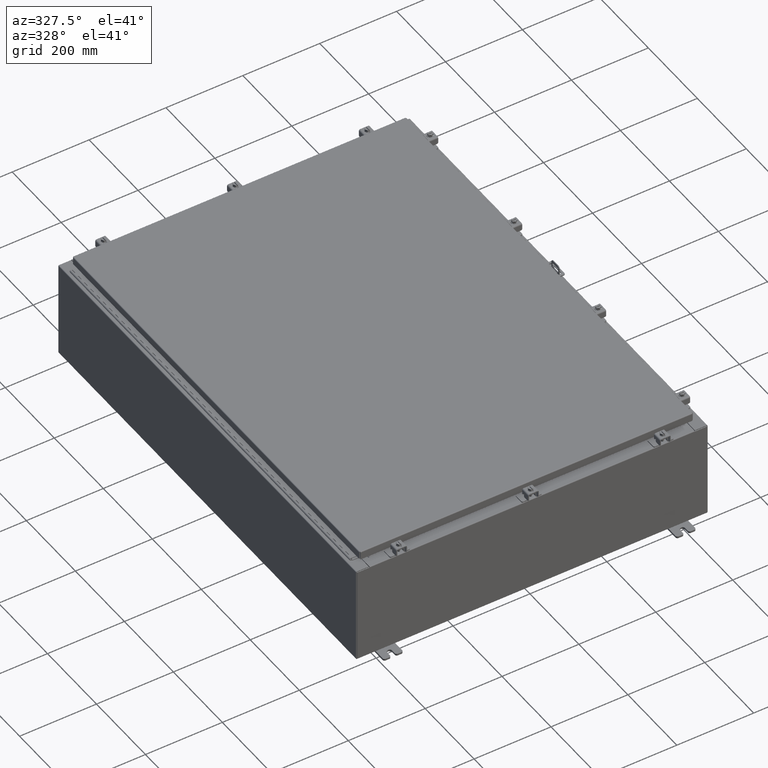
[diagram: clean part render]
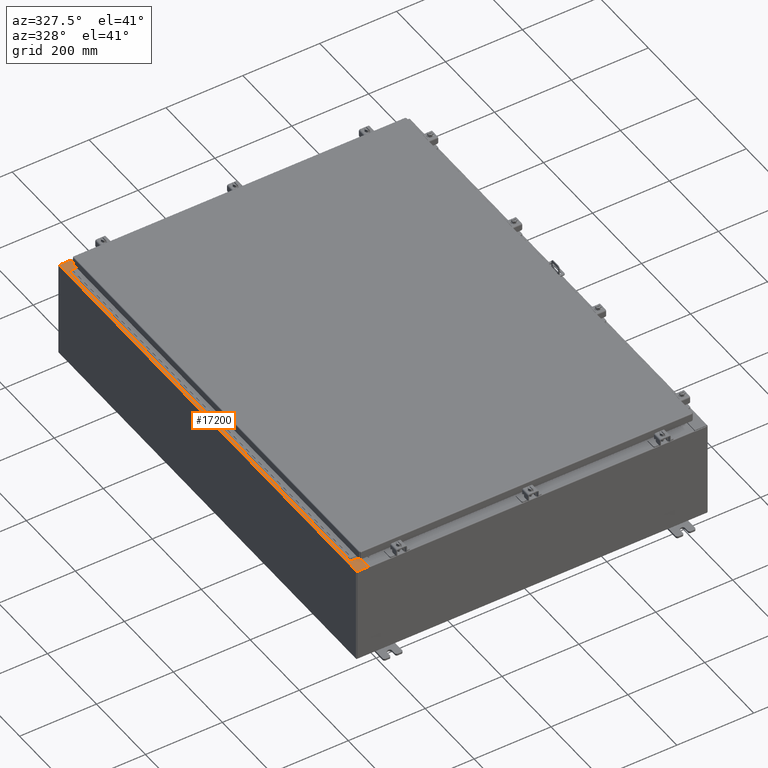
[diagram: same view with one face highlighted and labeled with its STEP entity id]
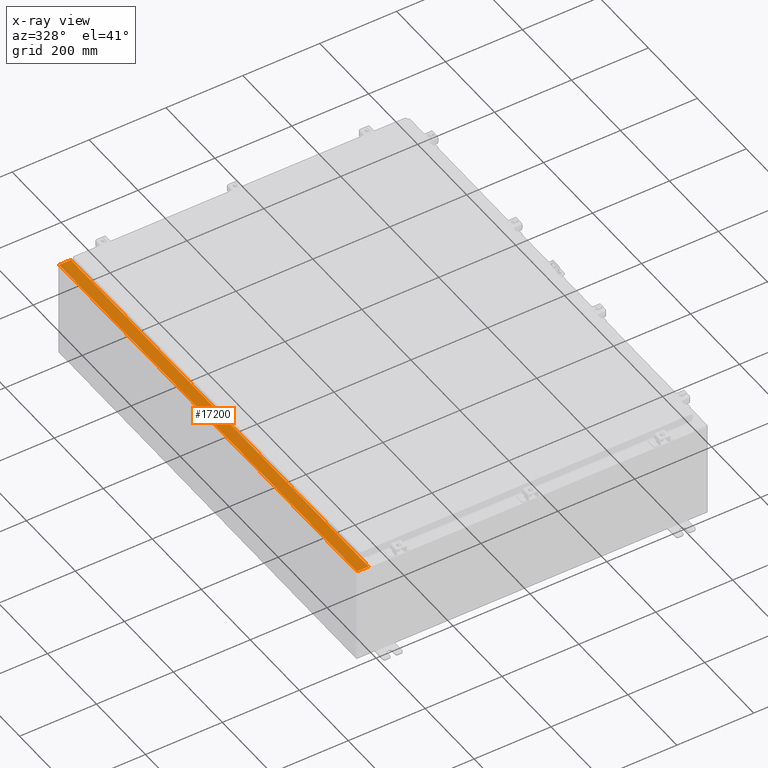
[diagram: x-ray of the same camera — body ghosted, the highlighted face saturated]
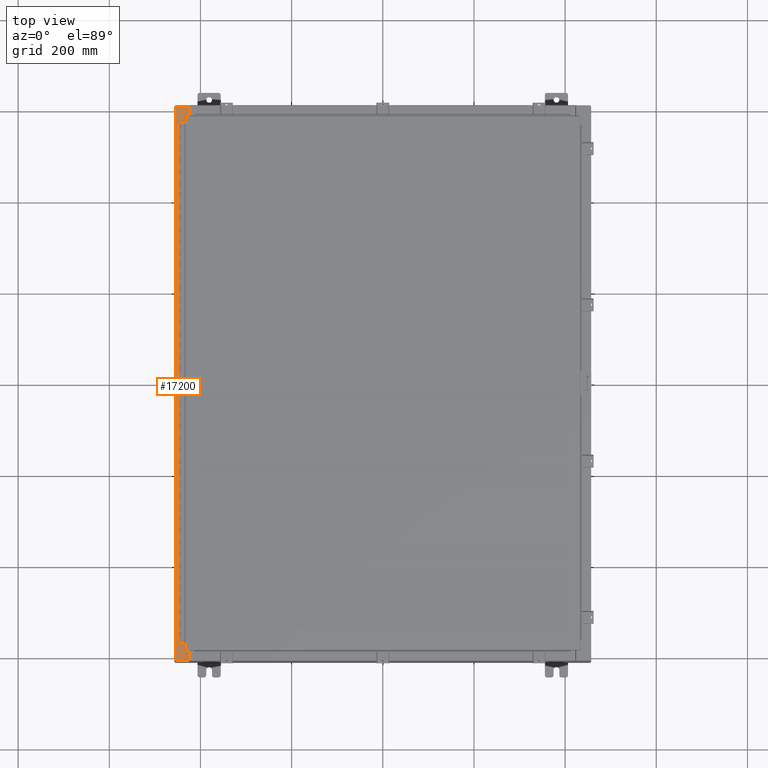
[diagram: same view with one face highlighted and labeled with its STEP entity id]
A machine part, auxiliary view. The second image highlights one B-rep face of the part: STEP entity #17200.
The next image is the same camera in x-ray: the body ghosted, the highlighted face saturated — about 0% of this face is hidden behind the body in this view.
A second angle (top view) of the same face is appended — the face is thin or edge-on in the first view.
In plain terms, the highlighted planar face has unit normal (0, 0, -1).
Its self-contained STEP definition (entity closure, byte-faithful):
#26 = CARTESIAN_POINT ( 'NONE',  ( -17.91230000000004100, -23.92529999999998600, 9.925300000000000000 ) ) ;
#292 = CARTESIAN_POINT ( 'NONE',  ( -16.69970000000003900, -22.63109999999999600, 9.925300000000007100 ) ) ;
#929 = CARTESIAN_POINT ( 'NONE',  ( -7.105562016127600600E-014, 23.92529999999998900, 9.925300000000126100 ) ) ;
#1309 = CARTESIAN_POINT ( 'NONE',  ( -7.105562016127600600E-014, 0.0000000000000000000, 9.925300000000126100 ) ) ;
#1488 = CARTESIAN_POINT ( 'NONE',  ( -16.71270000000004100, 22.59374999999999300, 9.925300000000008900 ) ) ;
#3279 = FACE_OUTER_BOUND ( 'NONE', #41077, .T. ) ;
#3304 = LINE ( 'NONE', #10059, #24088 ) ;
#4930 = VERTEX_POINT ( 'NONE', #26 ) ;
#5252 = CARTESIAN_POINT ( 'NONE',  ( -17.91230000000004100, 23.92529999999998900, 9.925300000000000000 ) ) ;
#6196 = VECTOR ( 'NONE', #13918, 39.37007874015748100 ) ;
#6428 = EDGE_CURVE ( 'NONE', #40886, #26280, #17296, .T. ) ;
#7472 = ORIENTED_EDGE ( 'NONE', *, *, #36956, .F. ) ;
#7793 = VERTEX_POINT ( 'NONE', #28281 ) ;
#9210 = DIRECTION ( 'NONE',  ( -1.000000000000000000, -8.144358738339254500E-032, -7.132762385546384700E-015 ) ) ;
#9792 = EDGE_CURVE ( 'NONE', #4930, #17613, #29957, .T. ) ;
#10000 = CARTESIAN_POINT ( 'NONE',  ( -16.75005000000004100, -22.61242499999998400, 9.925300000000008900 ) ) ;
#10059 = CARTESIAN_POINT ( 'NONE',  ( -16.69970000000003900, 22.63109999999999600, 9.925300000000007100 ) ) ;
#10941 = LINE ( 'NONE', #15556, #44274 ) ;
#10987 = AXIS2_PLACEMENT_3D ( 'NONE', #10000, #39227, #14219 ) ;
#11152 = VECTOR ( 'NONE', #22493, 39.37007874015748100 ) ;
#11453 = EDGE_CURVE ( 'NONE', #4930, #25180, #52564, .T. ) ;
#12431 = CARTESIAN_POINT ( 'NONE',  ( -16.69970000000003900, 22.63109999999999600, 9.925300000000007100 ) ) ;
#12479 = LINE ( 'NONE', #26726, #11152 ) ;
#13377 = ORIENTED_EDGE ( 'NONE', *, *, #11453, .F. ) ;
#13784 = DIRECTION ( 'NONE',  ( -1.000000000000000000, 0.0000000000000000000, -7.132762385546384700E-015 ) ) ;
#13918 = DIRECTION ( 'NONE',  ( -3.203758888773074600E-031, 1.000000000000000000, -2.285165089420047000E-045 ) ) ;
#14219 = DIRECTION ( 'NONE',  ( 1.000000000000000000, 0.0000000000000000000, 0.0000000000000000000 ) ) ;
#15103 = VECTOR ( 'NONE', #51112, 39.37007874015748100 ) ;
#15556 = CARTESIAN_POINT ( 'NONE',  ( -16.75005000000004100, 22.59374999999999300, 9.925300000000008900 ) ) ;
#15952 = EDGE_CURVE ( 'NONE', #17613, #36768, #17739, .T. ) ;
#16746 = VERTEX_POINT ( 'NONE', #39758 ) ;
#17200 = ADVANCED_FACE ( 'NONE', ( #3279 ), #34612, .F. ) ;
#17296 = LINE ( 'NONE', #49313, #6196 ) ;
#17613 = VERTEX_POINT ( 'NONE', #24851 ) ;
#17739 = LINE ( 'NONE', #25965, #15103 ) ;
#17978 = LINE ( 'NONE', #20957, #38879 ) ;
#18157 = ORIENTED_EDGE ( 'NONE', *, *, #31452, .F. ) ;
#18678 = LINE ( 'NONE', #929, #39576 ) ;
#19011 = ORIENTED_EDGE ( 'NONE', *, *, #22118, .F. ) ;
#19730 = DIRECTION ( 'NONE',  ( 1.000000000000000000, 0.0000000000000000000, 0.0000000000000000000 ) ) ;
#20957 = CARTESIAN_POINT ( 'NONE',  ( -16.75005000000004100, -22.63109999999998200, 9.925300000000008900 ) ) ;
#22118 = EDGE_CURVE ( 'NONE', #44123, #7793, #25869, .T. ) ;
#22493 = DIRECTION ( 'NONE',  ( -1.000000000000000000, 0.0000000000000000000, 0.0000000000000000000 ) ) ;
#22712 = EDGE_CURVE ( 'NONE', #16746, #36768, #17978, .T. ) ;
#23631 = ORIENTED_EDGE ( 'NONE', *, *, #22712, .F. ) ;
#24088 = VECTOR ( 'NONE', #52010, 39.37007874015748100 ) ;
#24460 = CARTESIAN_POINT ( 'NONE',  ( -16.75005000000004100, 22.61242499999999100, 9.925300000000008900 ) ) ;
#24851 = CARTESIAN_POINT ( 'NONE',  ( -16.69970000000003900, -23.92529999999998600, 9.925300000000007100 ) ) ;
#25180 = VERTEX_POINT ( 'NONE', #5252 ) ;
#25275 = EDGE_CURVE ( 'NONE', #29716, #42236, #12479, .T. ) ;
#25869 = CIRCLE ( 'NONE', #29341, 0.01867499999999949400 ) ;
#25965 = CARTESIAN_POINT ( 'NONE',  ( -16.69970000000003900, -5.350181231484360800E-030, 9.925300000000007100 ) ) ;
#26280 = VERTEX_POINT ( 'NONE', #45619 ) ;
#26726 = CARTESIAN_POINT ( 'NONE',  ( -16.71270000000004100, -22.59374999999998200, 9.925300000000008900 ) ) ;
#28281 = CARTESIAN_POINT ( 'NONE',  ( -16.75005000000004100, 22.59374999999999300, 9.925300000000007100 ) ) ;
#28544 = EDGE_CURVE ( 'NONE', #40886, #44123, #3304, .T. ) ;
#28687 = DIRECTION ( 'NONE',  ( 1.000000000000000000, 0.0000000000000000000, 0.0000000000000000000 ) ) ;
#29184 = DIRECTION ( 'NONE',  ( 1.000000000000000000, -8.681145560800197900E-014, -4.340572780400098900E-014 ) ) ;
#29290 = CARTESIAN_POINT ( 'NONE',  ( -1.563823601127326600E-013, -23.92530000000005300, 9.925300000000126100 ) ) ;
#29336 = ORIENTED_EDGE ( 'NONE', *, *, #40728, .F. ) ;
#29341 = AXIS2_PLACEMENT_3D ( 'NONE', #24460, #53622, #28687 ) ;
#29716 = VERTEX_POINT ( 'NONE', #51425 ) ;
#29957 = LINE ( 'NONE', #29290, #39731 ) ;
#30068 = CIRCLE ( 'NONE', #10987, 0.01867499999999949400 ) ;
#31452 = EDGE_CURVE ( 'NONE', #47877, #29716, #52615, .T. ) ;
#31697 = EDGE_CURVE ( 'NONE', #26280, #25180, #18678, .T. ) ;
#32687 = ORIENTED_EDGE ( 'NONE', *, *, #15952, .T. ) ;
#33538 = DIRECTION ( 'NONE',  ( -0.0000000000000000000, 1.000000000000000000, -0.0000000000000000000 ) ) ;
#34612 = PLANE ( 'NONE',  #49335 ) ;
#36768 = VERTEX_POINT ( 'NONE', #292 ) ;
#36956 = EDGE_CURVE ( 'NONE', #42236, #16746, #30068, .T. ) ;
#37727 = CARTESIAN_POINT ( 'NONE',  ( -17.91230000000004100, 23.92529999999998900, 9.925300000000000000 ) ) ;
#38106 = ORIENTED_EDGE ( 'NONE', *, *, #6428, .T. ) ;
#38404 = CARTESIAN_POINT ( 'NONE',  ( -16.71270000000004100, 22.59374999999999300, 9.925300000000008900 ) ) ;
#38748 = ORIENTED_EDGE ( 'NONE', *, *, #28544, .F. ) ;
#38813 = DIRECTION ( 'NONE',  ( 7.132762385546384700E-015, 0.0000000000000000000, -1.000000000000000000 ) ) ;
#38879 = VECTOR ( 'NONE', #29184, 39.37007874015748100 ) ;
#39162 = DIRECTION ( 'NONE',  ( -0.0000000000000000000, -1.000000000000000000, -0.0000000000000000000 ) ) ;
#39227 = DIRECTION ( 'NONE',  ( -7.132762385546384700E-015, -0.0000000000000000000, 1.000000000000000000 ) ) ;
#39576 = VECTOR ( 'NONE', #9210, 39.37007874015748100 ) ;
#39731 = VECTOR ( 'NONE', #50070, 39.37007874015748100 ) ;
#39758 = CARTESIAN_POINT ( 'NONE',  ( -16.75005000000004100, -22.63109999999998200, 9.925300000000007100 ) ) ;
#40220 = VECTOR ( 'NONE', #33538, 39.37007874015748100 ) ;
#40728 = EDGE_CURVE ( 'NONE', #7793, #47877, #10941, .T. ) ;
#40886 = VERTEX_POINT ( 'NONE', #12431 ) ;
#41077 = EDGE_LOOP ( 'NONE', ( #38748, #38106, #51862, #13377, #48726, #32687, #23631, #7472, #52480, #18157, #29336, #19011 ) ) ;
#41586 = VECTOR ( 'NONE', #39162, 39.37007874015748100 ) ;
#42236 = VERTEX_POINT ( 'NONE', #48523 ) ;
#44123 = VERTEX_POINT ( 'NONE', #50755 ) ;
#44274 = VECTOR ( 'NONE', #19730, 39.37007874015748100 ) ;
#45619 = CARTESIAN_POINT ( 'NONE',  ( -16.69970000000003900, 23.92529999999998900, 9.925300000000007100 ) ) ;
#47877 = VERTEX_POINT ( 'NONE', #38404 ) ;
#48523 = CARTESIAN_POINT ( 'NONE',  ( -16.75005000000004100, -22.59374999999998200, 9.925300000000007100 ) ) ;
#48726 = ORIENTED_EDGE ( 'NONE', *, *, #9792, .T. ) ;
#49313 = CARTESIAN_POINT ( 'NONE',  ( -16.69970000000003900, -5.350181231484360800E-030, 9.925300000000007100 ) ) ;
#49335 = AXIS2_PLACEMENT_3D ( 'NONE', #1309, #38813, #13784 ) ;
#50070 = DIRECTION ( 'NONE',  ( 1.000000000000000000, -3.566381192773193100E-015, 7.132762385546384700E-015 ) ) ;
#50755 = CARTESIAN_POINT ( 'NONE',  ( -16.75005000000004100, 22.63109999999999300, 9.925300000000007100 ) ) ;
#51112 = DIRECTION ( 'NONE',  ( -3.203758888773074600E-031, 1.000000000000000000, -2.285165089420047000E-045 ) ) ;
#51425 = CARTESIAN_POINT ( 'NONE',  ( -16.71270000000004100, -22.59374999999998200, 9.925300000000008900 ) ) ;
#51862 = ORIENTED_EDGE ( 'NONE', *, *, #31697, .T. ) ;
#52010 = DIRECTION ( 'NONE',  ( -1.000000000000000000, -8.681145560800197900E-014, 4.340572780400098900E-014 ) ) ;
#52480 = ORIENTED_EDGE ( 'NONE', *, *, #25275, .F. ) ;
#52564 = LINE ( 'NONE', #37727, #40220 ) ;
#52615 = LINE ( 'NONE', #1488, #41586 ) ;
#53622 = DIRECTION ( 'NONE',  ( -7.132762385546384700E-015, -0.0000000000000000000, 1.000000000000000000 ) ) ;